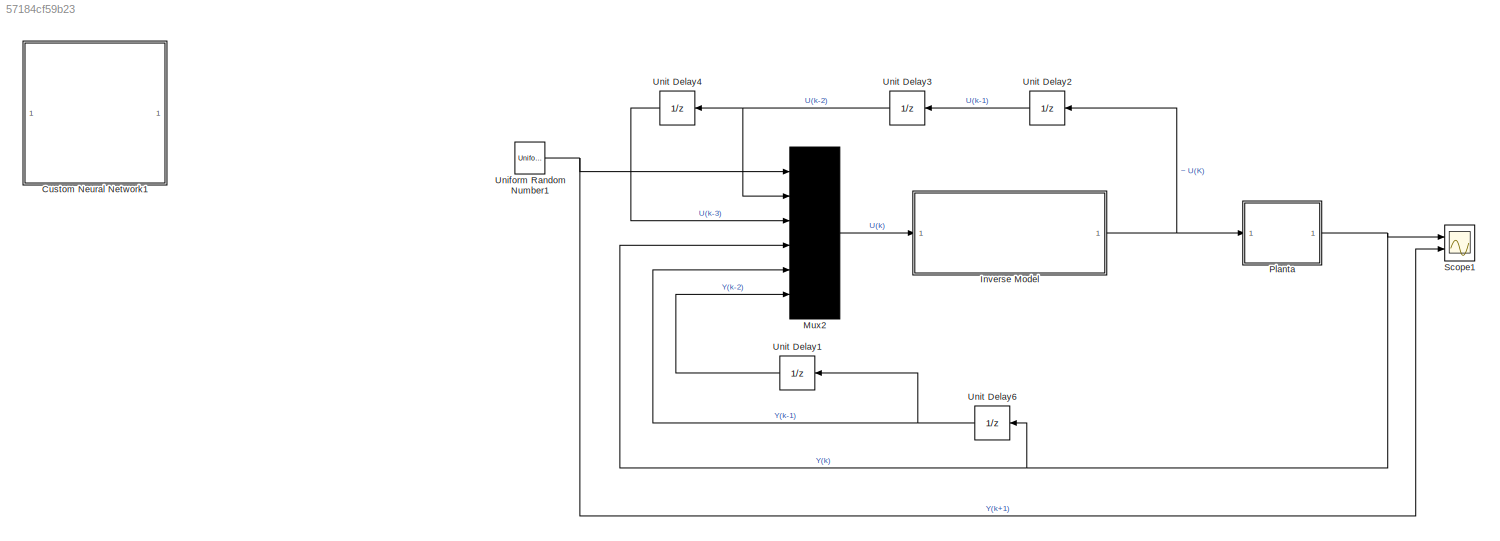
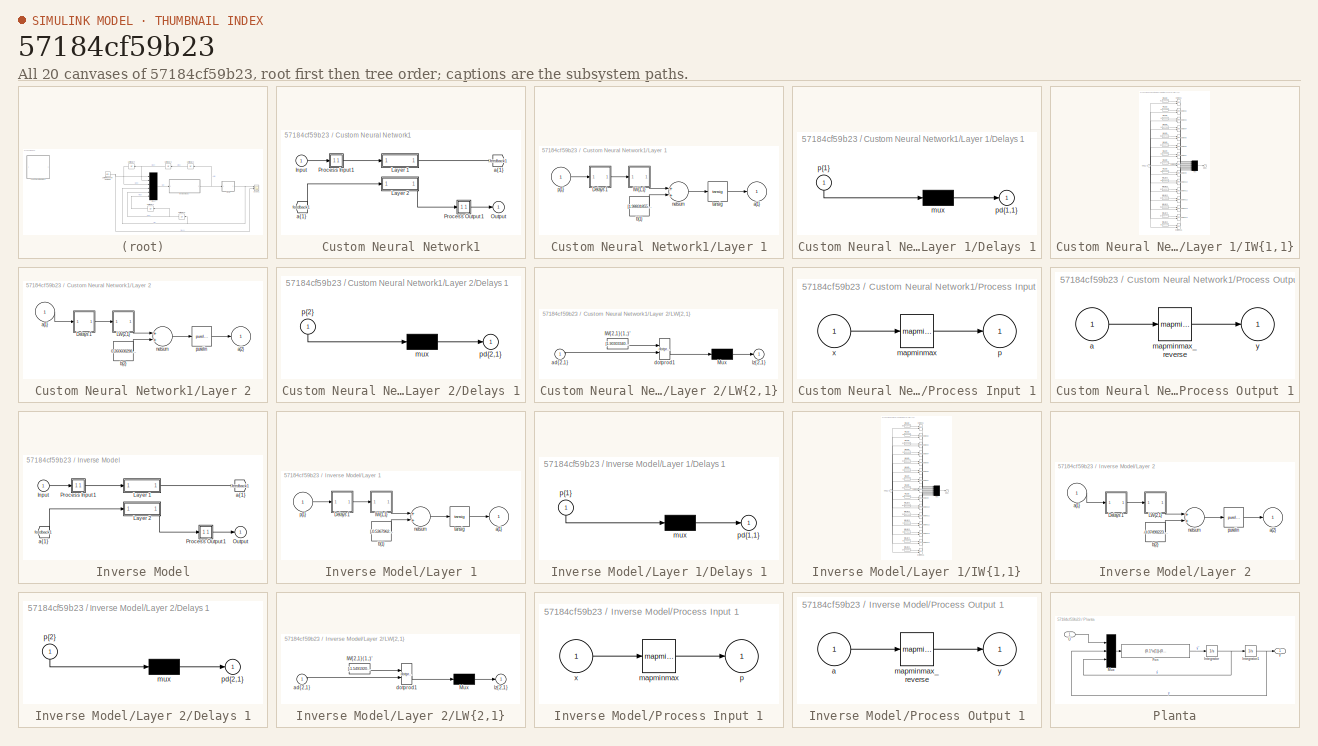
[diagram: thumbnail index - all 20 canvases of the model, root first then tree order]
MODEL slx_57184cf59b23
KIND model
CONFIG AbsTol = auto
CONFIG FixedStep = auto
CONFIG MaxStep = auto
CONFIG MinStep = auto
CONFIG RelTol = 1e-3
CONFIG SampleTimeConstraint = Unconstrained
CONFIG Solver = VariableStepAuto
CONFIG SolverMode = Auto
CONFIG SolverName = VariableStepAuto
CONFIG StartTime = 0.0
CONFIG StopTime = 1000
BLOCK [SubSystem] Custom Neural Network1
  Ports = [1, 1]
  RequestExecContextInheritance = off
  Variant = off
BLOCK [From] Custom Neural Network1/ a{1} 
  GotoTag = feedback1
BLOCK [Inport] Custom Neural Network1/Input
  IconDisplay = Port number
  PortDimensions = 6
  SampleTime = 1
BLOCK [SubSystem] Custom Neural Network1/Layer 1
  Ports = [1, 1]
  RequestExecContextInheritance = off
  Variant = off
BLOCK [SubSystem] Custom Neural Network1/Layer 1/Delays 1
  Ports = [1, 1]
  RequestExecContextInheritance = off
  Variant = off
BLOCK [Mux] Custom Neural Network1/Layer 1/Delays 1/mux
  Inputs = 1
  Ports = [1, 1]
BLOCK [Outport] Custom Neural Network1/Layer 1/Delays 1/pd{1,1}
  IconDisplay = Port number
BLOCK [Inport] Custom Neural Network1/Layer 1/Delays 1/p{1}
  IconDisplay = Port number
  PortDimensions = 6
  SampleTime = 1
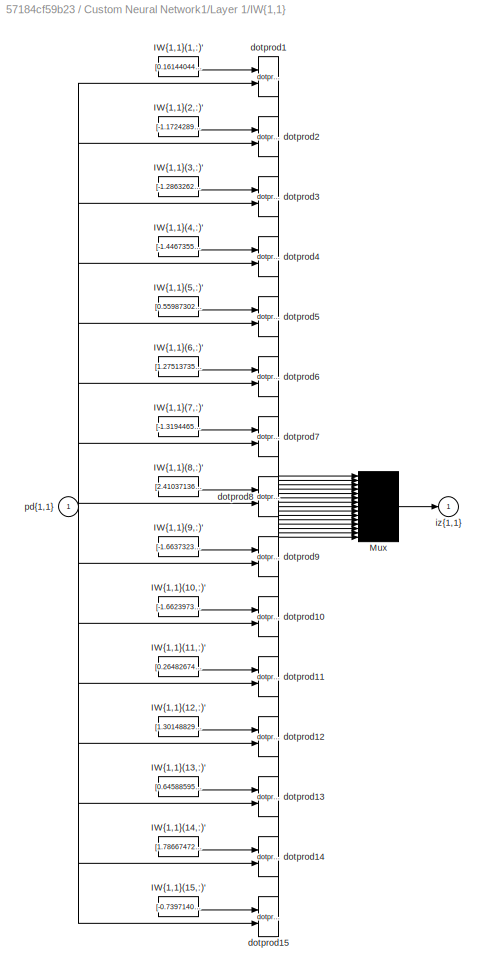
BLOCK [SubSystem] Custom Neural Network1/Layer 1/IW{1,1}
  Ports = [1, 1]
  RequestExecContextInheritance = off
  Variant = off
BLOCK [Constant] Custom Neural Network1/Layer 1/IW{1,1}/IW{1,1}(1,:)'
  Value = [0.16144044147681624;0.29880284490928177;-0.16489099171257335;-1.5551541470948114;-0.57832308206490479;0.85972433716129371]
BLOCK [Constant] Custom Neural Network1/Layer 1/IW{1,1}/IW{1,1}(10,:)'
  Value = [-1.6623973608105229;-0.10209733586466796;0.1279823042643829;0.66195666876404402;0.54603153074939426;0.52690077353723386]
BLOCK [Constant] Custom Neural Network1/Layer 1/IW{1,1}/IW{1,1}(11,:)'
  Value = [0.26482674017522273;0.51888860656727998;0.10633006935003379;1.3570440587669761;-0.0467695544661327;-0.58947594289649907]
BLOCK [Constant] Custom Neural Network1/Layer 1/IW{1,1}/IW{1,1}(12,:)'
  Value = [1.3014882925974376;-0.011009064386672514;-0.034238686503496089;-0.88892128223719802;-1.0742275526289353;-0.12922301134599037]
BLOCK [Constant] Custom Neural Network1/Layer 1/IW{1,1}/IW{1,1}(13,:)'
  Value = [0.64588595467590204;-0.20408622897055867;0.025657251396712284;-0.53948578812200987;-0.57926848898946715;-0.51756621919490098]
BLOCK [Constant] Custom Neural Network1/Layer 1/IW{1,1}/IW{1,1}(14,:)'
  Value = [1.7866747265082992;-0.55309904794221865;0.61180592315366134;0.66930633616752477;-0.34081981196448707;-0.99850455618253431]
BLOCK [Constant] Custom Neural Network1/Layer 1/IW{1,1}/IW{1,1}(15,:)'
  Value = [-0.73971400207123117;-0.26764076719198815;-0.9070166338440675;-1.8430519617672476;-0.23557287856821821;-1.1211581444363368]
BLOCK [Constant] Custom Neural Network1/Layer 1/IW{1,1}/IW{1,1}(2,:)'
  Value = [-1.1724289615570838;-0.20713355372002309;0.64825939846899716;0.20504449603028543;-0.71416805822203155;-0.23809202367699683]
BLOCK [Constant] Custom Neural Network1/Layer 1/IW{1,1}/IW{1,1}(3,:)'
  Value = [-1.2863262290729534;0.29625775888951278;-0.55271765618502433;-0.053145851872242959;-0.73841272032218808;1.141538497895217]
BLOCK [Constant] Custom Neural Network1/Layer 1/IW{1,1}/IW{1,1}(4,:)'
  Value = [-1.4467355541621925;0.54565312195560089;0.19797701833854237;1.2808010235510474;-0.46881247309140472;0.82292774343936981]
BLOCK [Constant] Custom Neural Network1/Layer 1/IW{1,1}/IW{1,1}(5,:)'
  Value = [0.55987302789138926;0.23049477838963295;0.10458593970326543;1.0527847580568137;-0.51203945249841742;0.91808624584638032]
BLOCK [Constant] Custom Neural Network1/Layer 1/IW{1,1}/IW{1,1}(6,:)'
  Value = [1.2751373577767495;-0.225131024217541;0.14342127869678745;-0.68558293465365194;-0.31612506688093872;0.45500697838769427]
BLOCK [Constant] Custom Neural Network1/Layer 1/IW{1,1}/IW{1,1}(7,:)'
  Value = [-1.3194465295699314;-1.0370286967207418;-1.0706868489841876;-0.44132305678558165;0.35937366473951871;-0.44082581557110906]
BLOCK [Constant] Custom Neural Network1/Layer 1/IW{1,1}/IW{1,1}(8,:)'
  Value = [2.4103713630309436;0.075827656740527147;-0.18013888345065127;-1.0310778741033231;0.36364163421567519;-0.3262044511693804]
BLOCK [Constant] Custom Neural Network1/Layer 1/IW{1,1}/IW{1,1}(9,:)'
  Value = [-1.6637323727463393;-0.13049774340633277;0.036605728014884639;-0.36710482384434689;0.72646041458461574;0.016607964937923193]
BLOCK [Mux] Custom Neural Network1/Layer 1/IW{1,1}/Mux
  Inputs = 15
  Ports = [15, 1]
BLOCK [Reference] Custom Neural Network1/Layer 1/IW{1,1}/dotprod1  REF=neural/Weight Functions/dotprod
  Ports = [2, 1]
  SourceBlock = neural/Weight Functions/dotprod
  SourceType = DOTPROD
BLOCK [Reference] Custom Neural Network1/Layer 1/IW{1,1}/dotprod10  REF=neural/Weight Functions/dotprod
  Ports = [2, 1]
  SourceBlock = neural/Weight Functions/dotprod
  SourceType = DOTPROD
BLOCK [Reference] Custom Neural Network1/Layer 1/IW{1,1}/dotprod11  REF=neural/Weight Functions/dotprod
  Ports = [2, 1]
  SourceBlock = neural/Weight Functions/dotprod
  SourceType = DOTPROD
BLOCK [Reference] Custom Neural Network1/Layer 1/IW{1,1}/dotprod12  REF=neural/Weight Functions/dotprod
  Ports = [2, 1]
  SourceBlock = neural/Weight Functions/dotprod
  SourceType = DOTPROD
BLOCK [Reference] Custom Neural Network1/Layer 1/IW{1,1}/dotprod13  REF=neural/Weight Functions/dotprod
  Ports = [2, 1]
  SourceBlock = neural/Weight Functions/dotprod
  SourceType = DOTPROD
BLOCK [Reference] Custom Neural Network1/Layer 1/IW{1,1}/dotprod14  REF=neural/Weight Functions/dotprod
  Ports = [2, 1]
  SourceBlock = neural/Weight Functions/dotprod
  SourceType = DOTPROD
BLOCK [Reference] Custom Neural Network1/Layer 1/IW{1,1}/dotprod15  REF=neural/Weight Functions/dotprod
  Ports = [2, 1]
  SourceBlock = neural/Weight Functions/dotprod
  SourceType = DOTPROD
BLOCK [Reference] Custom Neural Network1/Layer 1/IW{1,1}/dotprod2  REF=neural/Weight Functions/dotprod
  Ports = [2, 1]
  SourceBlock = neural/Weight Functions/dotprod
  SourceType = DOTPROD
BLOCK [Reference] Custom Neural Network1/Layer 1/IW{1,1}/dotprod3  REF=neural/Weight Functions/dotprod
  Ports = [2, 1]
  SourceBlock = neural/Weight Functions/dotprod
  SourceType = DOTPROD
BLOCK [Reference] Custom Neural Network1/Layer 1/IW{1,1}/dotprod4  REF=neural/Weight Functions/dotprod
  Ports = [2, 1]
  SourceBlock = neural/Weight Functions/dotprod
  SourceType = DOTPROD
BLOCK [Reference] Custom Neural Network1/Layer 1/IW{1,1}/dotprod5  REF=neural/Weight Functions/dotprod
  Ports = [2, 1]
  SourceBlock = neural/Weight Functions/dotprod
  SourceType = DOTPROD
BLOCK [Reference] Custom Neural Network1/Layer 1/IW{1,1}/dotprod6  REF=neural/Weight Functions/dotprod
  Ports = [2, 1]
  SourceBlock = neural/Weight Functions/dotprod
  SourceType = DOTPROD
BLOCK [Reference] Custom Neural Network1/Layer 1/IW{1,1}/dotprod7  REF=neural/Weight Functions/dotprod
  Ports = [2, 1]
  SourceBlock = neural/Weight Functions/dotprod
  SourceType = DOTPROD
BLOCK [Reference] Custom Neural Network1/Layer 1/IW{1,1}/dotprod8  REF=neural/Weight Functions/dotprod
  Ports = [2, 1]
  SourceBlock = neural/Weight Functions/dotprod
  SourceType = DOTPROD
BLOCK [Reference] Custom Neural Network1/Layer 1/IW{1,1}/dotprod9  REF=neural/Weight Functions/dotprod
  Ports = [2, 1]
  SourceBlock = neural/Weight Functions/dotprod
  SourceType = DOTPROD
BLOCK [Outport] Custom Neural Network1/Layer 1/IW{1,1}/iz{1,1}
  IconDisplay = Port number
BLOCK [Inport] Custom Neural Network1/Layer 1/IW{1,1}/pd{1,1}
  IconDisplay = Port number
  PortDimensions = 6
  SampleTime = 1
BLOCK [Outport] Custom Neural Network1/Layer 1/a{1}
  IconDisplay = Port number
  InitialOutput = [0;0;0;0;0;0;0;0;0;0;0;0;0;0;0]
BLOCK [Constant] Custom Neural Network1/Layer 1/b{1}
  Value = [1.9883185549027007;2.5376151859619243;1.9577978274695935;0.55720453526199376;-0.94175689954209219;-0.92894542222233878;0.48763179135267604;-1.9244121235108016;0.56992529991930307;0.11427104389896479;2.3123621145592157;1.364288851239245;-0.85644581390274499;2.0111645919802545;-1.1905910854510751]
BLOCK [Sum] Custom Neural Network1/Layer 1/netsum
  Inputs = 2
  Ports = [2, 1]
BLOCK [Inport] Custom Neural Network1/Layer 1/p{1}
  IconDisplay = Port number
  PortDimensions = 6
  SampleTime = 1
BLOCK [Reference] Custom Neural Network1/Layer 1/tansig  REF=neural/Transfer Functions/tansig
  Ports = [1, 1]
  SourceBlock = neural/Transfer Functions/tansig
  SourceType = TANSIG
BLOCK [SubSystem] Custom Neural Network1/Layer 2
  Ports = [1, 1]
  RequestExecContextInheritance = off
  Variant = off
BLOCK [SubSystem] Custom Neural Network1/Layer 2/Delays 1
  Ports = [1, 1]
  RequestExecContextInheritance = off
  Variant = off
BLOCK [Mux] Custom Neural Network1/Layer 2/Delays 1/mux
  Inputs = 1
  Ports = [1, 1]
BLOCK [Outport] Custom Neural Network1/Layer 2/Delays 1/pd{2,1}
  IconDisplay = Port number
BLOCK [Inport] Custom Neural Network1/Layer 2/Delays 1/p{2}
  IconDisplay = Port number
  PortDimensions = 15
  SampleTime = 1
BLOCK [SubSystem] Custom Neural Network1/Layer 2/LW{2,1}
  Ports = [1, 1]
  RequestExecContextInheritance = off
  Variant = off
BLOCK [Constant] Custom Neural Network1/Layer 2/LW{2,1}/IW{2,1}(1,:)'
  Value = [1.903033400022957;0.6233054113405061;-0.70908447500989258;-0.59263345194182604;-0.068548882698196645;3.2118367639284302;0.0011432338834725798;3.6758890012754093;-0.85442489548276135;-0.60580411046913585;-1.1297660313829461;4.86065101189208;-0.71321917419325831;0.37222222927618764;-0.0038581513613094569]
BLOCK [Mux] Custom Neural Network1/Layer 2/LW{2,1}/Mux
  Inputs = 1
  Ports = [1, 1]
BLOCK [Inport] Custom Neural Network1/Layer 2/LW{2,1}/ad{2,1}
  IconDisplay = Port number
  PortDimensions = 15
  SampleTime = 1
BLOCK [Reference] Custom Neural Network1/Layer 2/LW{2,1}/dotprod1  REF=neural/Weight Functions/dotprod
  Ports = [2, 1]
  SourceBlock = neural/Weight Functions/dotprod
  SourceType = DOTPROD
BLOCK [Outport] Custom Neural Network1/Layer 2/LW{2,1}/lz{2,1}
  IconDisplay = Port number
BLOCK [Inport] Custom Neural Network1/Layer 2/a{1} 
  IconDisplay = Port number
  PortDimensions = 15
  SampleTime = 1
BLOCK [Outport] Custom Neural Network1/Layer 2/a{2}
  IconDisplay = Port number
  InitialOutput = 0
BLOCK [Constant] Custom Neural Network1/Layer 2/b{2}
  Value = 0.26060829880158992
BLOCK [Sum] Custom Neural Network1/Layer 2/netsum
  Inputs = 2
  Ports = [2, 1]
BLOCK [Reference] Custom Neural Network1/Layer 2/purelin  REF=neural/Transfer Functions/purelin
  Ports = [1, 1]
  SourceBlock = neural/Transfer Functions/purelin
  SourceType = PURELIN
BLOCK [Outport] Custom Neural Network1/Output
  IconDisplay = Port number
  InitialOutput = 0
BLOCK [SubSystem] Custom Neural Network1/Process Input 1
  Ports = [1, 1]
  RequestExecContextInheritance = off
  Variant = off
BLOCK [Reference] Custom Neural Network1/Process Input 1/mapminmax  REF=neural/Processing Functions/mapminmax
  Ports = [1, 1]
  SourceBlock = neural/Processing Functions/mapminmax
  SourceType = MAPMINMAX Preprocess
BLOCK [Outport] Custom Neural Network1/Process Input 1/p
  IconDisplay = Port number
  PortDimensions = 6
  SampleTime = 1
BLOCK [Inport] Custom Neural Network1/Process Input 1/x
  IconDisplay = Port number
  PortDimensions = 6
  SampleTime = 1
BLOCK [SubSystem] Custom Neural Network1/Process Output 1
  Ports = [1, 1]
  RequestExecContextInheritance = off
  Variant = off
BLOCK [Inport] Custom Neural Network1/Process Output 1/a
  IconDisplay = Port number
  PortDimensions = 1
  SampleTime = 1
BLOCK [Reference] Custom Neural Network1/Process Output 1/mapminmax_reverse  REF=neural/Processing Functions/mapminmax_reverse
  Ports = [1, 1]
  SourceBlock = neural/Processing Functions/mapminmax_reverse
  SourceType = MAPMINMAX Reverse Process
BLOCK [Outport] Custom Neural Network1/Process Output 1/y
  IconDisplay = Port number
  PortDimensions = 1
  SampleTime = 1
BLOCK [Goto] Custom Neural Network1/a{1}
  GotoTag = feedback1
BLOCK [SubSystem] Inverse Model
  Ports = [1, 1]
  RequestExecContextInheritance = off
  Variant = off
BLOCK [From] Inverse Model/ a{1} 
  GotoTag = feedback1
BLOCK [Inport] Inverse Model/Input
  IconDisplay = Port number
  PortDimensions = 6
  SampleTime = 0.7
BLOCK [SubSystem] Inverse Model/Layer 1
  Ports = [1, 1]
  RequestExecContextInheritance = off
  Variant = off
BLOCK [SubSystem] Inverse Model/Layer 1/Delays 1
  Ports = [1, 1]
  RequestExecContextInheritance = off
  Variant = off
BLOCK [Mux] Inverse Model/Layer 1/Delays 1/mux
  Inputs = 1
  Ports = [1, 1]
BLOCK [Outport] Inverse Model/Layer 1/Delays 1/pd{1,1}
  IconDisplay = Port number
BLOCK [Inport] Inverse Model/Layer 1/Delays 1/p{1}
  IconDisplay = Port number
  PortDimensions = 6
  SampleTime = 0.7
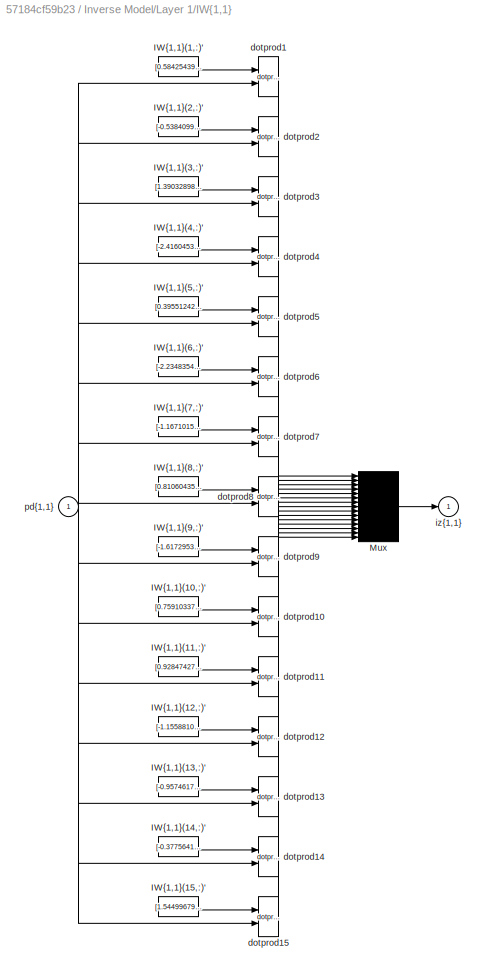
BLOCK [SubSystem] Inverse Model/Layer 1/IW{1,1}
  Ports = [1, 1]
  RequestExecContextInheritance = off
  Variant = off
BLOCK [Constant] Inverse Model/Layer 1/IW{1,1}/IW{1,1}(1,:)'
  Value = [0.58425439757932474;-0.18262487460260871;0.090608665321831497;-1.4308517602485848;0.077659833218470128;0.038456674078359267]
BLOCK [Constant] Inverse Model/Layer 1/IW{1,1}/IW{1,1}(10,:)'
  Value = [0.75910337346099976;-0.53665735778015167;-1.041748879141503;0.90823061819269668;-1.3198721894972785;-0.10278511711835792]
BLOCK [Constant] Inverse Model/Layer 1/IW{1,1}/IW{1,1}(11,:)'
  Value = [0.9284742797158575;-0.24743826171296793;-0.6406074959830097;-0.79458582472954098;-1.3497559246268134;-0.0056495186512009465]
BLOCK [Constant] Inverse Model/Layer 1/IW{1,1}/IW{1,1}(12,:)'
  Value = [-1.155881053915482;-0.21646677286952007;-0.15714900301034831;0.25646459020514956;0.13055032405449168;0.051559423984108343]
BLOCK [Constant] Inverse Model/Layer 1/IW{1,1}/IW{1,1}(13,:)'
  Value = [-0.95746171387389856;-0.0058935665685582329;-0.92843176312020315;-1.219865179849108;-0.062440590524204878;0.48778556810943996]
BLOCK [Constant] Inverse Model/Layer 1/IW{1,1}/IW{1,1}(14,:)'
  Value = [-0.37756417807785109;-0.21415741303367633;0.2753245012480679;1.5224773656608506;0.10025915314384298;0.49067711655358082]
BLOCK [Constant] Inverse Model/Layer 1/IW{1,1}/IW{1,1}(15,:)'
  Value = [1.5449967984208011;0.12588797145703423;0.58395998664283599;0.19426498964678382;-1.5311136993937386;0.23225615486551682]
BLOCK [Constant] Inverse Model/Layer 1/IW{1,1}/IW{1,1}(2,:)'
  Value = [-0.53840995986263651;-0.93420111526375449;0.24121981007928647;1.248443150303725;0.88682930289037176;-0.037254206278444141]
BLOCK [Constant] Inverse Model/Layer 1/IW{1,1}/IW{1,1}(3,:)'
  Value = [1.3903289825219658;1.2099446905738602;0.75912684885627491;0.28892328354542779;0.85161650633499619;1.8507986948487614]
BLOCK [Constant] Inverse Model/Layer 1/IW{1,1}/IW{1,1}(4,:)'
  Value = [-2.4160453387562901;-0.01207925429775826;0.085803256711034642;0.99651479047998837;0.30651369054165745;-0.021937828348986606]
BLOCK [Constant] Inverse Model/Layer 1/IW{1,1}/IW{1,1}(5,:)'
  Value = [0.39551242894397998;0.83561529343148777;0.14535959301140586;1.2967024650610914;0.30019744010851529;1.0698066942350917]
BLOCK [Constant] Inverse Model/Layer 1/IW{1,1}/IW{1,1}(6,:)'
  Value = [-2.2348354067462028;-0.048948453051760078;0.27669808433077847;1.0494974742625864;-0.29663229251094475;0.097699165391842618]
BLOCK [Constant] Inverse Model/Layer 1/IW{1,1}/IW{1,1}(7,:)'
  Value = [-1.1671015295198035;0.0072293458883218751;-0.0094592460427296837;1.0261887637578271;0.82994176380453288;0.024089870154184147]
BLOCK [Constant] Inverse Model/Layer 1/IW{1,1}/IW{1,1}(8,:)'
  Value = [0.8106043582136444;-0.52598659331452846;0.49871091153315467;0.15108719901140777;1.3396159525516098;0.30832244214156912]
BLOCK [Constant] Inverse Model/Layer 1/IW{1,1}/IW{1,1}(9,:)'
  Value = [-1.6172953334954023;0.14295087301374326;-0.13410776630435953;1.7402819134488228;-0.18114284514867485;-0.029327452639109471]
BLOCK [Mux] Inverse Model/Layer 1/IW{1,1}/Mux
  Inputs = 15
  Ports = [15, 1]
BLOCK [Reference] Inverse Model/Layer 1/IW{1,1}/dotprod1  REF=neural/Weight Functions/dotprod
  Ports = [2, 1]
  SourceBlock = neural/Weight Functions/dotprod
  SourceType = DOTPROD
BLOCK [Reference] Inverse Model/Layer 1/IW{1,1}/dotprod10  REF=neural/Weight Functions/dotprod
  Ports = [2, 1]
  SourceBlock = neural/Weight Functions/dotprod
  SourceType = DOTPROD
BLOCK [Reference] Inverse Model/Layer 1/IW{1,1}/dotprod11  REF=neural/Weight Functions/dotprod
  Ports = [2, 1]
  SourceBlock = neural/Weight Functions/dotprod
  SourceType = DOTPROD
BLOCK [Reference] Inverse Model/Layer 1/IW{1,1}/dotprod12  REF=neural/Weight Functions/dotprod
  Ports = [2, 1]
  SourceBlock = neural/Weight Functions/dotprod
  SourceType = DOTPROD
BLOCK [Reference] Inverse Model/Layer 1/IW{1,1}/dotprod13  REF=neural/Weight Functions/dotprod
  Ports = [2, 1]
  SourceBlock = neural/Weight Functions/dotprod
  SourceType = DOTPROD
BLOCK [Reference] Inverse Model/Layer 1/IW{1,1}/dotprod14  REF=neural/Weight Functions/dotprod
  Ports = [2, 1]
  SourceBlock = neural/Weight Functions/dotprod
  SourceType = DOTPROD
BLOCK [Reference] Inverse Model/Layer 1/IW{1,1}/dotprod15  REF=neural/Weight Functions/dotprod
  Ports = [2, 1]
  SourceBlock = neural/Weight Functions/dotprod
  SourceType = DOTPROD
BLOCK [Reference] Inverse Model/Layer 1/IW{1,1}/dotprod2  REF=neural/Weight Functions/dotprod
  Ports = [2, 1]
  SourceBlock = neural/Weight Functions/dotprod
  SourceType = DOTPROD
BLOCK [Reference] Inverse Model/Layer 1/IW{1,1}/dotprod3  REF=neural/Weight Functions/dotprod
  Ports = [2, 1]
  SourceBlock = neural/Weight Functions/dotprod
  SourceType = DOTPROD
BLOCK [Reference] Inverse Model/Layer 1/IW{1,1}/dotprod4  REF=neural/Weight Functions/dotprod
  Ports = [2, 1]
  SourceBlock = neural/Weight Functions/dotprod
  SourceType = DOTPROD
BLOCK [Reference] Inverse Model/Layer 1/IW{1,1}/dotprod5  REF=neural/Weight Functions/dotprod
  Ports = [2, 1]
  SourceBlock = neural/Weight Functions/dotprod
  SourceType = DOTPROD
BLOCK [Reference] Inverse Model/Layer 1/IW{1,1}/dotprod6  REF=neural/Weight Functions/dotprod
  Ports = [2, 1]
  SourceBlock = neural/Weight Functions/dotprod
  SourceType = DOTPROD
BLOCK [Reference] Inverse Model/Layer 1/IW{1,1}/dotprod7  REF=neural/Weight Functions/dotprod
  Ports = [2, 1]
  SourceBlock = neural/Weight Functions/dotprod
  SourceType = DOTPROD
BLOCK [Reference] Inverse Model/Layer 1/IW{1,1}/dotprod8  REF=neural/Weight Functions/dotprod
  Ports = [2, 1]
  SourceBlock = neural/Weight Functions/dotprod
  SourceType = DOTPROD
BLOCK [Reference] Inverse Model/Layer 1/IW{1,1}/dotprod9  REF=neural/Weight Functions/dotprod
  Ports = [2, 1]
  SourceBlock = neural/Weight Functions/dotprod
  SourceType = DOTPROD
BLOCK [Outport] Inverse Model/Layer 1/IW{1,1}/iz{1,1}
  IconDisplay = Port number
BLOCK [Inport] Inverse Model/Layer 1/IW{1,1}/pd{1,1}
  IconDisplay = Port number
  PortDimensions = 6
  SampleTime = 0.7
BLOCK [Outport] Inverse Model/Layer 1/a{1}
  IconDisplay = Port number
  InitialOutput = [0;0;0;0;0;0;0;0;0;0;0;0;0;0;0]
BLOCK [Constant] Inverse Model/Layer 1/b{1}
  Value = [-0.53679620970116582;1.9318578478094084;-1.5816398883492677;1.7581244997702516;0.76255077499220469;0.75239590670194478;-1.5246901997358311;-1.2175105479132331;-0.01126465216556731;0.89110875323077809;-0.60572203957006154;-1.2999882726768892;-0.6613019476866796;3.0143784580709609;-2.8365840196687508]
BLOCK [Sum] Inverse Model/Layer 1/netsum
  Inputs = 2
  Ports = [2, 1]
BLOCK [Inport] Inverse Model/Layer 1/p{1}
  IconDisplay = Port number
  PortDimensions = 6
  SampleTime = 0.7
BLOCK [Reference] Inverse Model/Layer 1/tansig  REF=neural/Transfer Functions/tansig
  Ports = [1, 1]
  SourceBlock = neural/Transfer Functions/tansig
  SourceType = TANSIG
BLOCK [SubSystem] Inverse Model/Layer 2
  Ports = [1, 1]
  RequestExecContextInheritance = off
  Variant = off
BLOCK [SubSystem] Inverse Model/Layer 2/Delays 1
  Ports = [1, 1]
  RequestExecContextInheritance = off
  Variant = off
BLOCK [Mux] Inverse Model/Layer 2/Delays 1/mux
  Inputs = 1
  Ports = [1, 1]
BLOCK [Outport] Inverse Model/Layer 2/Delays 1/pd{2,1}
  IconDisplay = Port number
BLOCK [Inport] Inverse Model/Layer 2/Delays 1/p{2}
  IconDisplay = Port number
  PortDimensions = 15
  SampleTime = 0.7
BLOCK [SubSystem] Inverse Model/Layer 2/LW{2,1}
  Ports = [1, 1]
  RequestExecContextInheritance = off
  Variant = off
BLOCK [Constant] Inverse Model/Layer 2/LW{2,1}/IW{2,1}(1,:)'
  Value = [-1.549192003840129;0.39787677981156316;-0.00063405075050091135;-4.8267872711589135;0.0080123174634894288;-0.70152745835911345;-6.4717484464923727;-0.012515891185202436;-2.6830529891465349;-0.021719518926271136;0.049841854305676433;1.2506162643121852;0.010856205845910873;-0.70543566266504132;0.68333395926049412]
BLOCK [Mux] Inverse Model/Layer 2/LW{2,1}/Mux
  Inputs = 1
  Ports = [1, 1]
BLOCK [Inport] Inverse Model/Layer 2/LW{2,1}/ad{2,1}
  IconDisplay = Port number
  PortDimensions = 15
  SampleTime = 0.7
BLOCK [Reference] Inverse Model/Layer 2/LW{2,1}/dotprod1  REF=neural/Weight Functions/dotprod
  Ports = [2, 1]
  SourceBlock = neural/Weight Functions/dotprod
  SourceType = DOTPROD
BLOCK [Outport] Inverse Model/Layer 2/LW{2,1}/lz{2,1}
  IconDisplay = Port number
BLOCK [Inport] Inverse Model/Layer 2/a{1} 
  IconDisplay = Port number
  PortDimensions = 15
  SampleTime = 0.7
BLOCK [Outport] Inverse Model/Layer 2/a{2}
  IconDisplay = Port number
  InitialOutput = 0
BLOCK [Constant] Inverse Model/Layer 2/b{2}
  Value = -0.074982238512353125
BLOCK [Sum] Inverse Model/Layer 2/netsum
  Inputs = 2
  Ports = [2, 1]
BLOCK [Reference] Inverse Model/Layer 2/purelin  REF=neural/Transfer Functions/purelin
  Ports = [1, 1]
  SourceBlock = neural/Transfer Functions/purelin
  SourceType = PURELIN
BLOCK [Outport] Inverse Model/Output
  IconDisplay = Port number
  InitialOutput = 0
BLOCK [SubSystem] Inverse Model/Process Input 1
  Ports = [1, 1]
  RequestExecContextInheritance = off
  Variant = off
BLOCK [Reference] Inverse Model/Process Input 1/mapminmax  REF=neural/Processing Functions/mapminmax
  Ports = [1, 1]
  SourceBlock = neural/Processing Functions/mapminmax
  SourceType = MAPMINMAX Preprocess
BLOCK [Outport] Inverse Model/Process Input 1/p
  IconDisplay = Port number
  PortDimensions = 6
  SampleTime = 0.7
BLOCK [Inport] Inverse Model/Process Input 1/x
  IconDisplay = Port number
  PortDimensions = 6
  SampleTime = 0.7
BLOCK [SubSystem] Inverse Model/Process Output 1
  Ports = [1, 1]
  RequestExecContextInheritance = off
  Variant = off
BLOCK [Inport] Inverse Model/Process Output 1/a
  IconDisplay = Port number
  PortDimensions = 1
  SampleTime = 0.7
BLOCK [Reference] Inverse Model/Process Output 1/mapminmax_reverse  REF=neural/Processing Functions/mapminmax_reverse
  Ports = [1, 1]
  SourceBlock = neural/Processing Functions/mapminmax_reverse
  SourceType = MAPMINMAX Reverse Process
BLOCK [Outport] Inverse Model/Process Output 1/y
  IconDisplay = Port number
  PortDimensions = 1
  SampleTime = 0.7
BLOCK [Goto] Inverse Model/a{1}
  GotoTag = feedback1
BLOCK [Mux] Mux2
  DisplayOption = bar
  Inputs = 6
  Ports = [6, 1]
BLOCK [SubSystem] Planta
  Ports = [1, 1]
  RequestExecContextInheritance = off
  Variant = off
BLOCK [Fcn] Planta/Fcn 
  Expr = (0.1*u(1))-(0.1*u(2)^2)-(u(3)*(u(2)^2+1))
BLOCK [Integrator] Planta/Integrator
  Ports = [1, 1]
BLOCK [Integrator] Planta/Integrator1
  Ports = [1, 1]
BLOCK [Mux] Planta/Mux
  DisplayOption = bar
  Inputs = 3
  Ports = [3, 1]
BLOCK [Inport] Planta/U
  IconDisplay = Port number
BLOCK [Outport] Planta/Y
  IconDisplay = Port number
BLOCK [Scope] Scope1
  NumInputPorts = 2
  Ports = [2]
  ScopeSpecificationString = Simulink.scopes.TimeScopeBlockCfg('CurrentConfiguration', extmgr.ConfigurationSet(extmgr.Configuration('Core','General UI',true),extmgr.Configuration('Core','Source UI',true),extmgr.Configuration('Sources','WiredSimulink',true,'DataLoggingVariableName','ScopeData1'),extmgr.Configuration('Visuals','Time Domain',true,'SerializedDisplays',{struct('MinYLimReal','-0.35051','MaxYLimReal','3.1546','YLabe...<+1439ch>
BLOCK [UniformRandomNumber] Uniform Random Number1
  Maximum = 3
  Minimum = 0
  SampleTime = 100
BLOCK [UnitDelay] Unit Delay1
  InputProcessing = Elements as channels (sample based)
  SampleTime = tm
BLOCK [UnitDelay] Unit Delay2
  InputProcessing = Elements as channels (sample based)
  SampleTime = tm
BLOCK [UnitDelay] Unit Delay3
  InputProcessing = Elements as channels (sample based)
  SampleTime = tm
BLOCK [UnitDelay] Unit Delay4
  InputProcessing = Elements as channels (sample based)
  SampleTime = tm
BLOCK [UnitDelay] Unit Delay6
  InputProcessing = Elements as channels (sample based)
  SampleTime = tm
LINE Custom Neural Network1/ a{1} :1 -> Custom Neural Network1/Layer 2:1
LINE Custom Neural Network1/Input:1 -> Custom Neural Network1/Process Input 1:1
LINE Custom Neural Network1/Layer 1/Delays 1/mux:1 -> Custom Neural Network1/Layer 1/Delays 1/pd{1,1}:1
LINE Custom Neural Network1/Layer 1/Delays 1/p{1}:1 -> Custom Neural Network1/Layer 1/Delays 1/mux:1
LINE Custom Neural Network1/Layer 1/Delays 1:1 -> Custom Neural Network1/Layer 1/IW{1,1}:1
LINE Custom Neural Network1/Layer 1/IW{1,1}/IW{1,1}(1,:)':1 -> Custom Neural Network1/Layer 1/IW{1,1}/dotprod1:1
LINE Custom Neural Network1/Layer 1/IW{1,1}/IW{1,1}(10,:)':1 -> Custom Neural Network1/Layer 1/IW{1,1}/dotprod10:1
LINE Custom Neural Network1/Layer 1/IW{1,1}/IW{1,1}(11,:)':1 -> Custom Neural Network1/Layer 1/IW{1,1}/dotprod11:1
LINE Custom Neural Network1/Layer 1/IW{1,1}/IW{1,1}(12,:)':1 -> Custom Neural Network1/Layer 1/IW{1,1}/dotprod12:1
LINE Custom Neural Network1/Layer 1/IW{1,1}/IW{1,1}(13,:)':1 -> Custom Neural Network1/Layer 1/IW{1,1}/dotprod13:1
LINE Custom Neural Network1/Layer 1/IW{1,1}/IW{1,1}(14,:)':1 -> Custom Neural Network1/Layer 1/IW{1,1}/dotprod14:1
LINE Custom Neural Network1/Layer 1/IW{1,1}/IW{1,1}(15,:)':1 -> Custom Neural Network1/Layer 1/IW{1,1}/dotprod15:1
LINE Custom Neural Network1/Layer 1/IW{1,1}/IW{1,1}(2,:)':1 -> Custom Neural Network1/Layer 1/IW{1,1}/dotprod2:1
LINE Custom Neural Network1/Layer 1/IW{1,1}/IW{1,1}(3,:)':1 -> Custom Neural Network1/Layer 1/IW{1,1}/dotprod3:1
LINE Custom Neural Network1/Layer 1/IW{1,1}/IW{1,1}(4,:)':1 -> Custom Neural Network1/Layer 1/IW{1,1}/dotprod4:1
LINE Custom Neural Network1/Layer 1/IW{1,1}/IW{1,1}(5,:)':1 -> Custom Neural Network1/Layer 1/IW{1,1}/dotprod5:1
LINE Custom Neural Network1/Layer 1/IW{1,1}/IW{1,1}(6,:)':1 -> Custom Neural Network1/Layer 1/IW{1,1}/dotprod6:1
LINE Custom Neural Network1/Layer 1/IW{1,1}/IW{1,1}(7,:)':1 -> Custom Neural Network1/Layer 1/IW{1,1}/dotprod7:1
LINE Custom Neural Network1/Layer 1/IW{1,1}/IW{1,1}(8,:)':1 -> Custom Neural Network1/Layer 1/IW{1,1}/dotprod8:1
LINE Custom Neural Network1/Layer 1/IW{1,1}/IW{1,1}(9,:)':1 -> Custom Neural Network1/Layer 1/IW{1,1}/dotprod9:1
LINE Custom Neural Network1/Layer 1/IW{1,1}/Mux:1 -> Custom Neural Network1/Layer 1/IW{1,1}/iz{1,1}:1
LINE Custom Neural Network1/Layer 1/IW{1,1}/dotprod10:1 -> Custom Neural Network1/Layer 1/IW{1,1}/Mux:10
LINE Custom Neural Network1/Layer 1/IW{1,1}/dotprod11:1 -> Custom Neural Network1/Layer 1/IW{1,1}/Mux:11
LINE Custom Neural Network1/Layer 1/IW{1,1}/dotprod12:1 -> Custom Neural Network1/Layer 1/IW{1,1}/Mux:12
LINE Custom Neural Network1/Layer 1/IW{1,1}/dotprod13:1 -> Custom Neural Network1/Layer 1/IW{1,1}/Mux:13
LINE Custom Neural Network1/Layer 1/IW{1,1}/dotprod14:1 -> Custom Neural Network1/Layer 1/IW{1,1}/Mux:14
LINE Custom Neural Network1/Layer 1/IW{1,1}/dotprod15:1 -> Custom Neural Network1/Layer 1/IW{1,1}/Mux:15
LINE Custom Neural Network1/Layer 1/IW{1,1}/dotprod1:1 -> Custom Neural Network1/Layer 1/IW{1,1}/Mux:1
LINE Custom Neural Network1/Layer 1/IW{1,1}/dotprod2:1 -> Custom Neural Network1/Layer 1/IW{1,1}/Mux:2
LINE Custom Neural Network1/Layer 1/IW{1,1}/dotprod3:1 -> Custom Neural Network1/Layer 1/IW{1,1}/Mux:3
LINE Custom Neural Network1/Layer 1/IW{1,1}/dotprod4:1 -> Custom Neural Network1/Layer 1/IW{1,1}/Mux:4
LINE Custom Neural Network1/Layer 1/IW{1,1}/dotprod5:1 -> Custom Neural Network1/Layer 1/IW{1,1}/Mux:5
LINE Custom Neural Network1/Layer 1/IW{1,1}/dotprod6:1 -> Custom Neural Network1/Layer 1/IW{1,1}/Mux:6
LINE Custom Neural Network1/Layer 1/IW{1,1}/dotprod7:1 -> Custom Neural Network1/Layer 1/IW{1,1}/Mux:7
LINE Custom Neural Network1/Layer 1/IW{1,1}/dotprod8:1 -> Custom Neural Network1/Layer 1/IW{1,1}/Mux:8
LINE Custom Neural Network1/Layer 1/IW{1,1}/dotprod9:1 -> Custom Neural Network1/Layer 1/IW{1,1}/Mux:9
NET Custom Neural Network1/Layer 1/IW{1,1}/pd{1,1}:1 -> Custom Neural Network1/Layer 1/IW{1,1}/dotprod10:2, Custom Neural Network1/Layer 1/IW{1,1}/dotprod11:2, Custom Neural Network1/Layer 1/IW{1,1}/dotprod12:2, Custom Neural Network1/Layer 1/IW{1,1}/dotprod13:2, Custom Neural Network1/Layer 1/IW{1,1}/dotprod14:2, Custom Neural Network1/Layer 1/IW{1,1}/dotprod15:2, Custom Neural Network1/Layer 1/IW{1,1}/dotprod1:2, Custom Neural Network1/Layer 1/IW{1,1}/dotprod2:2, Custom Neural Network1/Layer 1/IW{1,1}/dotprod3:2, Custom Neural Network1/Layer 1/IW{1,1}/dotprod4:2, Custom Neural Network1/Layer 1/IW{1,1}/dotprod5:2, Custom Neural Network1/Layer 1/IW{1,1}/dotprod6:2, Custom Neural Network1/Layer 1/IW{1,1}/dotprod7:2, Custom Neural Network1/Layer 1/IW{1,1}/dotprod8:2, Custom Neural Network1/Layer 1/IW{1,1}/dotprod9:2
LINE Custom Neural Network1/Layer 1/IW{1,1}:1 -> Custom Neural Network1/Layer 1/netsum:1
LINE Custom Neural Network1/Layer 1/b{1}:1 -> Custom Neural Network1/Layer 1/netsum:2
LINE Custom Neural Network1/Layer 1/netsum:1 -> Custom Neural Network1/Layer 1/tansig:1
LINE Custom Neural Network1/Layer 1/p{1}:1 -> Custom Neural Network1/Layer 1/Delays 1:1
LINE Custom Neural Network1/Layer 1/tansig:1 -> Custom Neural Network1/Layer 1/a{1}:1
LINE Custom Neural Network1/Layer 1:1 -> Custom Neural Network1/a{1}:1
LINE Custom Neural Network1/Layer 2/Delays 1/mux:1 -> Custom Neural Network1/Layer 2/Delays 1/pd{2,1}:1
LINE Custom Neural Network1/Layer 2/Delays 1/p{2}:1 -> Custom Neural Network1/Layer 2/Delays 1/mux:1
LINE Custom Neural Network1/Layer 2/Delays 1:1 -> Custom Neural Network1/Layer 2/LW{2,1}:1
LINE Custom Neural Network1/Layer 2/LW{2,1}/IW{2,1}(1,:)':1 -> Custom Neural Network1/Layer 2/LW{2,1}/dotprod1:1
LINE Custom Neural Network1/Layer 2/LW{2,1}/Mux:1 -> Custom Neural Network1/Layer 2/LW{2,1}/lz{2,1}:1
LINE Custom Neural Network1/Layer 2/LW{2,1}/ad{2,1}:1 -> Custom Neural Network1/Layer 2/LW{2,1}/dotprod1:2
LINE Custom Neural Network1/Layer 2/LW{2,1}/dotprod1:1 -> Custom Neural Network1/Layer 2/LW{2,1}/Mux:1
LINE Custom Neural Network1/Layer 2/LW{2,1}:1 -> Custom Neural Network1/Layer 2/netsum:1
LINE Custom Neural Network1/Layer 2/a{1} :1 -> Custom Neural Network1/Layer 2/Delays 1:1
LINE Custom Neural Network1/Layer 2/b{2}:1 -> Custom Neural Network1/Layer 2/netsum:2
LINE Custom Neural Network1/Layer 2/netsum:1 -> Custom Neural Network1/Layer 2/purelin:1
LINE Custom Neural Network1/Layer 2/purelin:1 -> Custom Neural Network1/Layer 2/a{2}:1
LINE Custom Neural Network1/Layer 2:1 -> Custom Neural Network1/Process Output 1:1
LINE Custom Neural Network1/Process Input 1/mapminmax:1 -> Custom Neural Network1/Process Input 1/p:1
LINE Custom Neural Network1/Process Input 1/x:1 -> Custom Neural Network1/Process Input 1/mapminmax:1
LINE Custom Neural Network1/Process Input 1:1 -> Custom Neural Network1/Layer 1:1
LINE Custom Neural Network1/Process Output 1/a:1 -> Custom Neural Network1/Process Output 1/mapminmax_reverse:1
LINE Custom Neural Network1/Process Output 1/mapminmax_reverse:1 -> Custom Neural Network1/Process Output 1/y:1
LINE Custom Neural Network1/Process Output 1:1 -> Custom Neural Network1/Output:1
LINE Inverse Model/ a{1} :1 -> Inverse Model/Layer 2:1
LINE Inverse Model/Input:1 -> Inverse Model/Process Input 1:1
LINE Inverse Model/Layer 1/Delays 1/mux:1 -> Inverse Model/Layer 1/Delays 1/pd{1,1}:1
LINE Inverse Model/Layer 1/Delays 1/p{1}:1 -> Inverse Model/Layer 1/Delays 1/mux:1
LINE Inverse Model/Layer 1/Delays 1:1 -> Inverse Model/Layer 1/IW{1,1}:1
LINE Inverse Model/Layer 1/IW{1,1}/IW{1,1}(1,:)':1 -> Inverse Model/Layer 1/IW{1,1}/dotprod1:1
LINE Inverse Model/Layer 1/IW{1,1}/IW{1,1}(10,:)':1 -> Inverse Model/Layer 1/IW{1,1}/dotprod10:1
LINE Inverse Model/Layer 1/IW{1,1}/IW{1,1}(11,:)':1 -> Inverse Model/Layer 1/IW{1,1}/dotprod11:1
LINE Inverse Model/Layer 1/IW{1,1}/IW{1,1}(12,:)':1 -> Inverse Model/Layer 1/IW{1,1}/dotprod12:1
LINE Inverse Model/Layer 1/IW{1,1}/IW{1,1}(13,:)':1 -> Inverse Model/Layer 1/IW{1,1}/dotprod13:1
LINE Inverse Model/Layer 1/IW{1,1}/IW{1,1}(14,:)':1 -> Inverse Model/Layer 1/IW{1,1}/dotprod14:1
LINE Inverse Model/Layer 1/IW{1,1}/IW{1,1}(15,:)':1 -> Inverse Model/Layer 1/IW{1,1}/dotprod15:1
LINE Inverse Model/Layer 1/IW{1,1}/IW{1,1}(2,:)':1 -> Inverse Model/Layer 1/IW{1,1}/dotprod2:1
LINE Inverse Model/Layer 1/IW{1,1}/IW{1,1}(3,:)':1 -> Inverse Model/Layer 1/IW{1,1}/dotprod3:1
LINE Inverse Model/Layer 1/IW{1,1}/IW{1,1}(4,:)':1 -> Inverse Model/Layer 1/IW{1,1}/dotprod4:1
LINE Inverse Model/Layer 1/IW{1,1}/IW{1,1}(5,:)':1 -> Inverse Model/Layer 1/IW{1,1}/dotprod5:1
LINE Inverse Model/Layer 1/IW{1,1}/IW{1,1}(6,:)':1 -> Inverse Model/Layer 1/IW{1,1}/dotprod6:1
LINE Inverse Model/Layer 1/IW{1,1}/IW{1,1}(7,:)':1 -> Inverse Model/Layer 1/IW{1,1}/dotprod7:1
LINE Inverse Model/Layer 1/IW{1,1}/IW{1,1}(8,:)':1 -> Inverse Model/Layer 1/IW{1,1}/dotprod8:1
LINE Inverse Model/Layer 1/IW{1,1}/IW{1,1}(9,:)':1 -> Inverse Model/Layer 1/IW{1,1}/dotprod9:1
LINE Inverse Model/Layer 1/IW{1,1}/Mux:1 -> Inverse Model/Layer 1/IW{1,1}/iz{1,1}:1
LINE Inverse Model/Layer 1/IW{1,1}/dotprod10:1 -> Inverse Model/Layer 1/IW{1,1}/Mux:10
LINE Inverse Model/Layer 1/IW{1,1}/dotprod11:1 -> Inverse Model/Layer 1/IW{1,1}/Mux:11
LINE Inverse Model/Layer 1/IW{1,1}/dotprod12:1 -> Inverse Model/Layer 1/IW{1,1}/Mux:12
LINE Inverse Model/Layer 1/IW{1,1}/dotprod13:1 -> Inverse Model/Layer 1/IW{1,1}/Mux:13
LINE Inverse Model/Layer 1/IW{1,1}/dotprod14:1 -> Inverse Model/Layer 1/IW{1,1}/Mux:14
LINE Inverse Model/Layer 1/IW{1,1}/dotprod15:1 -> Inverse Model/Layer 1/IW{1,1}/Mux:15
LINE Inverse Model/Layer 1/IW{1,1}/dotprod1:1 -> Inverse Model/Layer 1/IW{1,1}/Mux:1
LINE Inverse Model/Layer 1/IW{1,1}/dotprod2:1 -> Inverse Model/Layer 1/IW{1,1}/Mux:2
LINE Inverse Model/Layer 1/IW{1,1}/dotprod3:1 -> Inverse Model/Layer 1/IW{1,1}/Mux:3
LINE Inverse Model/Layer 1/IW{1,1}/dotprod4:1 -> Inverse Model/Layer 1/IW{1,1}/Mux:4
LINE Inverse Model/Layer 1/IW{1,1}/dotprod5:1 -> Inverse Model/Layer 1/IW{1,1}/Mux:5
LINE Inverse Model/Layer 1/IW{1,1}/dotprod6:1 -> Inverse Model/Layer 1/IW{1,1}/Mux:6
LINE Inverse Model/Layer 1/IW{1,1}/dotprod7:1 -> Inverse Model/Layer 1/IW{1,1}/Mux:7
LINE Inverse Model/Layer 1/IW{1,1}/dotprod8:1 -> Inverse Model/Layer 1/IW{1,1}/Mux:8
LINE Inverse Model/Layer 1/IW{1,1}/dotprod9:1 -> Inverse Model/Layer 1/IW{1,1}/Mux:9
NET Inverse Model/Layer 1/IW{1,1}/pd{1,1}:1 -> Inverse Model/Layer 1/IW{1,1}/dotprod10:2, Inverse Model/Layer 1/IW{1,1}/dotprod11:2, Inverse Model/Layer 1/IW{1,1}/dotprod12:2, Inverse Model/Layer 1/IW{1,1}/dotprod13:2, Inverse Model/Layer 1/IW{1,1}/dotprod14:2, Inverse Model/Layer 1/IW{1,1}/dotprod15:2, Inverse Model/Layer 1/IW{1,1}/dotprod1:2, Inverse Model/Layer 1/IW{1,1}/dotprod2:2, Inverse Model/Layer 1/IW{1,1}/dotprod3:2, Inverse Model/Layer 1/IW{1,1}/dotprod4:2, Inverse Model/Layer 1/IW{1,1}/dotprod5:2, Inverse Model/Layer 1/IW{1,1}/dotprod6:2, Inverse Model/Layer 1/IW{1,1}/dotprod7:2, Inverse Model/Layer 1/IW{1,1}/dotprod8:2, Inverse Model/Layer 1/IW{1,1}/dotprod9:2
LINE Inverse Model/Layer 1/IW{1,1}:1 -> Inverse Model/Layer 1/netsum:1
LINE Inverse Model/Layer 1/b{1}:1 -> Inverse Model/Layer 1/netsum:2
LINE Inverse Model/Layer 1/netsum:1 -> Inverse Model/Layer 1/tansig:1
LINE Inverse Model/Layer 1/p{1}:1 -> Inverse Model/Layer 1/Delays 1:1
LINE Inverse Model/Layer 1/tansig:1 -> Inverse Model/Layer 1/a{1}:1
LINE Inverse Model/Layer 1:1 -> Inverse Model/a{1}:1
LINE Inverse Model/Layer 2/Delays 1/mux:1 -> Inverse Model/Layer 2/Delays 1/pd{2,1}:1
LINE Inverse Model/Layer 2/Delays 1/p{2}:1 -> Inverse Model/Layer 2/Delays 1/mux:1
LINE Inverse Model/Layer 2/Delays 1:1 -> Inverse Model/Layer 2/LW{2,1}:1
LINE Inverse Model/Layer 2/LW{2,1}/IW{2,1}(1,:)':1 -> Inverse Model/Layer 2/LW{2,1}/dotprod1:1
LINE Inverse Model/Layer 2/LW{2,1}/Mux:1 -> Inverse Model/Layer 2/LW{2,1}/lz{2,1}:1
LINE Inverse Model/Layer 2/LW{2,1}/ad{2,1}:1 -> Inverse Model/Layer 2/LW{2,1}/dotprod1:2
LINE Inverse Model/Layer 2/LW{2,1}/dotprod1:1 -> Inverse Model/Layer 2/LW{2,1}/Mux:1
LINE Inverse Model/Layer 2/LW{2,1}:1 -> Inverse Model/Layer 2/netsum:1
LINE Inverse Model/Layer 2/a{1} :1 -> Inverse Model/Layer 2/Delays 1:1
LINE Inverse Model/Layer 2/b{2}:1 -> Inverse Model/Layer 2/netsum:2
LINE Inverse Model/Layer 2/netsum:1 -> Inverse Model/Layer 2/purelin:1
LINE Inverse Model/Layer 2/purelin:1 -> Inverse Model/Layer 2/a{2}:1
LINE Inverse Model/Layer 2:1 -> Inverse Model/Process Output 1:1
LINE Inverse Model/Process Input 1/mapminmax:1 -> Inverse Model/Process Input 1/p:1
LINE Inverse Model/Process Input 1/x:1 -> Inverse Model/Process Input 1/mapminmax:1
LINE Inverse Model/Process Input 1:1 -> Inverse Model/Layer 1:1
LINE Inverse Model/Process Output 1/a:1 -> Inverse Model/Process Output 1/mapminmax_reverse:1
LINE Inverse Model/Process Output 1/mapminmax_reverse:1 -> Inverse Model/Process Output 1/y:1
LINE Inverse Model/Process Output 1:1 -> Inverse Model/Output:1
NET Inverse Model:1 -> Planta:1, Unit Delay2:1
LINE Mux2:1 -> Inverse Model:1
LINE Planta/Fcn :1 -> Planta/Integrator:1
NET Planta/Integrator1:1 -> Planta/Mux:2, Planta/Y:1
NET Planta/Integrator:1 -> Planta/Integrator1:1, Planta/Mux:3
LINE Planta/Mux:1 -> Planta/Fcn :1
LINE Planta/U:1 -> Planta/Mux:1
NET Planta:1 -> Mux2:4, Scope1:1, Unit Delay6:1
NET Uniform Random Number1:1 -> Mux2:1, Scope1:2
LINE Unit Delay1:1 -> Mux2:6
LINE Unit Delay2:1 -> Unit Delay3:1
NET Unit Delay3:1 -> Mux2:2, Unit Delay4:1
LINE Unit Delay4:1 -> Mux2:3
NET Unit Delay6:1 -> Mux2:5, Unit Delay1:1
note: NET lines group one-source signal fan-out (src -> all destinations, sorted); 1:1 wires keep LINE
